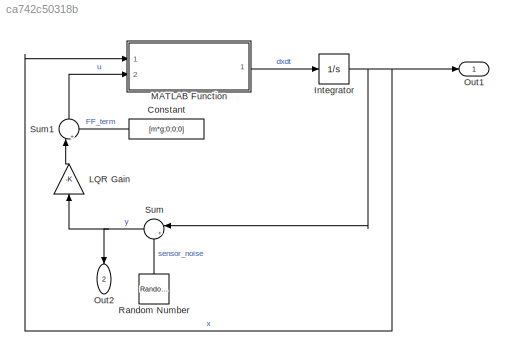
MODEL slx_ca742c50318b
KIND model
CONFIG AbsTol = auto
CONFIG EnableMultiTasking = off
CONFIG FixedStep = auto
CONFIG MaxStep = auto
CONFIG MinStep = auto
CONFIG RelTol = 1e-3
CONFIG SampleTimeConstraint = Unconstrained
CONFIG Solver = VariableStepAuto
CONFIG SolverName = VariableStepAuto
CONFIG StartTime = 0.0
CONFIG StopTime = 10.0
BLOCK [Constant] Constant
  Value = [m*g;0;0;0]
  VectorParams1D = off
BLOCK [Integrator] Integrator
  InitialCondition = x0
  Ports = [1, 1]
BLOCK [Gain] LQR Gain 
  Gain = -K
  Multiplication = Matrix(K*u)
  OutDataTypeStr = Inherit: Inherit via internal rule
  ParamDataTypeStr = Inherit: Inherit via internal rule
  SaturateOnIntegerOverflow = off
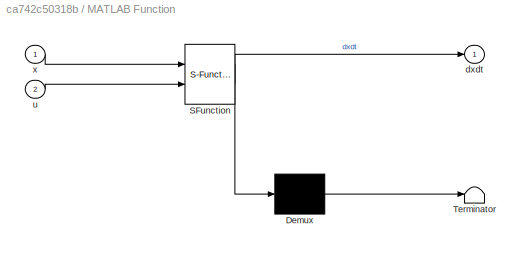
BLOCK [SubSystem] MATLAB Function
  ErrorFcn = Stateflow.Translate.translate
  PermitHierarchicalResolution = ExplicitOnly
  Ports = [2, 1]
  RequestExecContextInheritance = off
  SFBlockType = MATLAB Function
  TreatAsAtomicUnit = on
BLOCK [Demux] MATLAB Function/ Demux 
  Outputs = 1
  Ports = [1, 1]
BLOCK [S-Function] MATLAB Function/ SFunction 
  EnableBusSupport = on
  FunctionName = sf_sfun
  PortCounts = [2 2]
  Ports = [2, 2]
  SFcnIsStateOwnerBlock = off
  SFunctionDeploymentMode = off
  Tag = Stateflow S-Function quadrotor_model_submission 2
BLOCK [Terminator] MATLAB Function/ Terminator 
BLOCK [Outport] MATLAB Function/dxdt
  IconDisplay = Port number
BLOCK [Inport] MATLAB Function/u
  IconDisplay = Port number
  Port = 2
BLOCK [Inport] MATLAB Function/x
  IconDisplay = Port number
BLOCK [Outport] Out1
  IconDisplay = Port number
  SignalName = x
BLOCK [Outport] Out2
  IconDisplay = Port number
  Port = 2
  SignalName = y
BLOCK [RandomNumber] Random Number
  Mean = zeros(12,1)
  SampleTime = 0.1
  Variance = sensor_noise_variance
  VectorParams1D = off
BLOCK [Sum] Sum
  IconShape = round
  InputSameDT = off
  Inputs = |++
  OutDataTypeStr = Inherit: Inherit via internal rule
  Ports = [2, 1]
  SaturateOnIntegerOverflow = off
BLOCK [Sum] Sum1
  IconShape = round
  InputSameDT = off
  Inputs = |++
  OutDataTypeStr = Inherit: Inherit via internal rule
  Ports = [2, 1]
  SaturateOnIntegerOverflow = off
LINE Constant:1 -> Sum1:2
NET Integrator:1 -> MATLAB Function:1, Out1:1, Sum:1
LINE LQR Gain :1 -> Sum1:1
LINE MATLAB Function:1 -> Integrator:1
LINE Random Number:1 -> Sum:2
LINE Sum1:1 -> MATLAB Function:2
NET Sum:1 -> LQR Gain :1, Out2:1
note: NET lines group one-source signal fan-out (src -> all destinations, sorted); 1:1 wires keep LINE
CHART MATLAB Function states=1 transitions=1
  STATE_LABEL 'eML_blk_kernel()'
  STATE_LABEL 'SCRIPT:\nfunction dxdt = quadrotor_dynamics(x, u)\n    m = 0.6;\n    Jx = 0.0092;\n    Jy = 0.0091;\n    Jz = 0.0101;\n    g = 9.81;\n    px_dot = x(1);\n%   px =     x(2);\n    py_dot = x(3);\n%   py =     x(4);\n    pz_dot = x(5);\n%   pz =     x(6);\n    p =      x(7);\n    phi =    x(8);\n    q =      x(9); \n    theta =  x(10);\n    r =      x(11);\n    psi =    x(12);\n    \n    u_clipped = zeros(4,1);\n    u_cl...<+747ch>'
